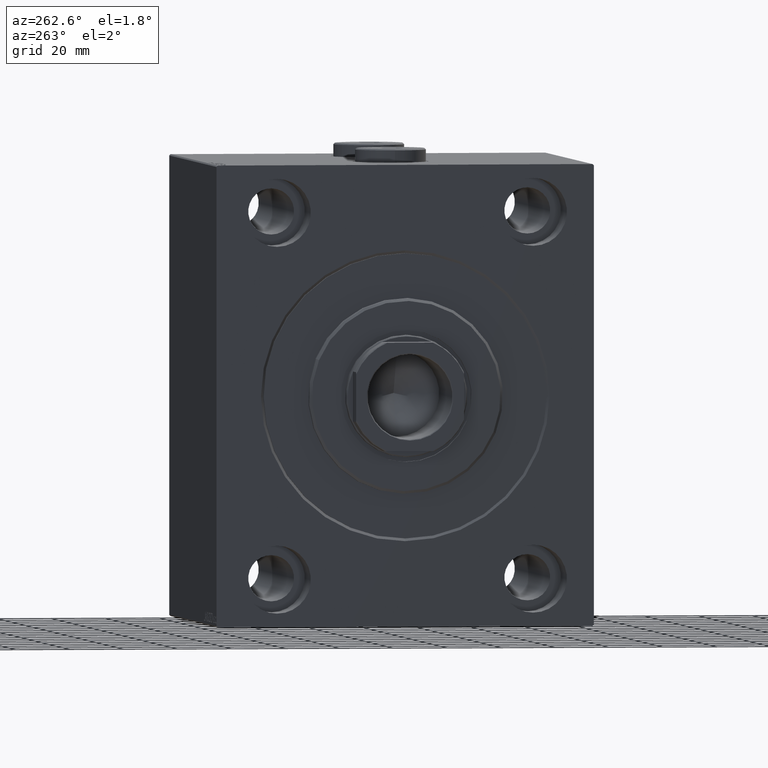
[diagram: clean part render]
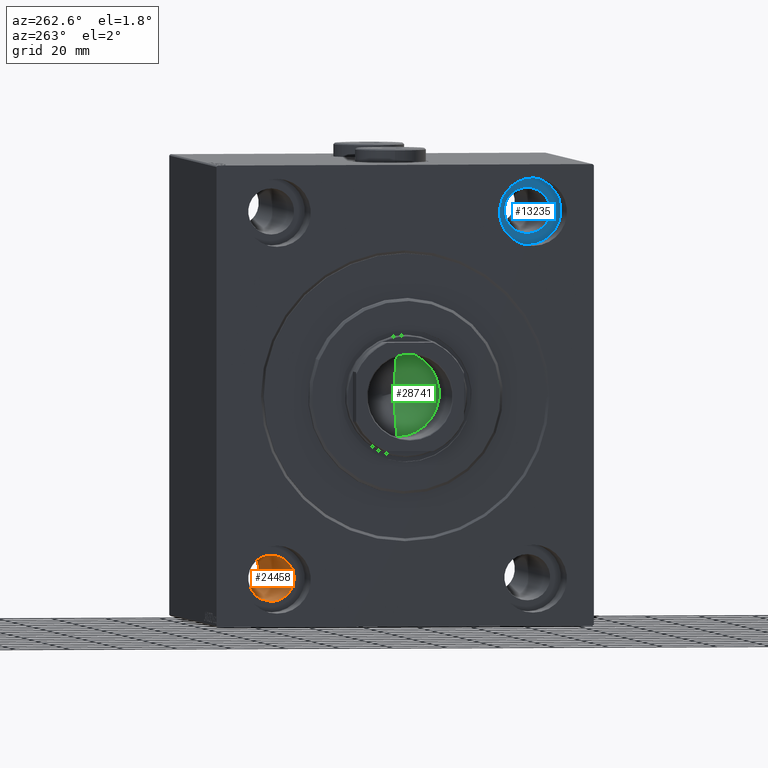
[diagram: same view with three faces highlighted in distinct colors, each labeled with its STEP entity id]
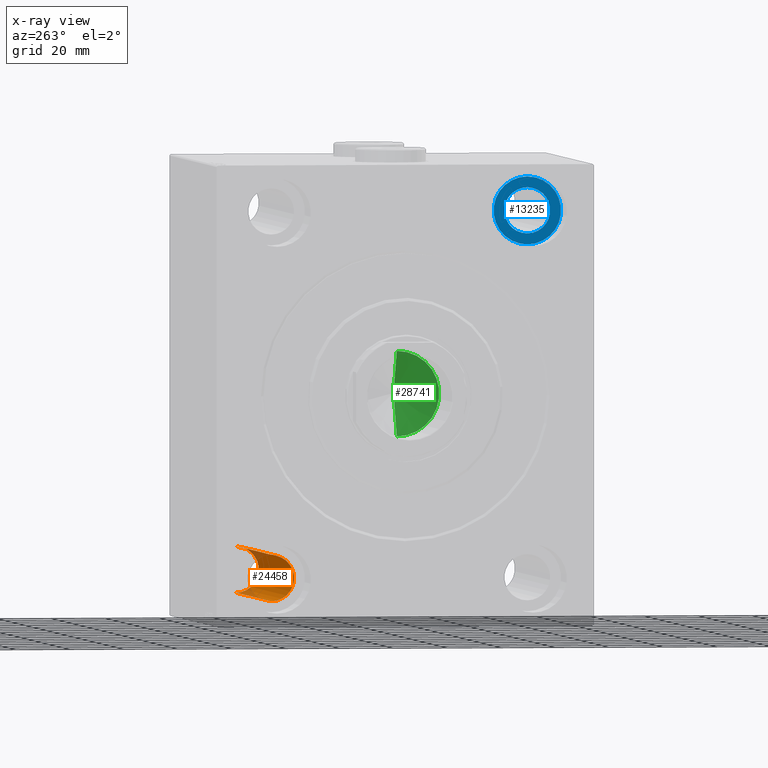
[diagram: x-ray of the same camera — body ghosted, the three highlighted faces saturated]
A machine part, auxiliary view with three faces highlighted in distinct colors.
The next image is the same camera in x-ray (body ghosted, the three faces saturated) — at least one of them is partly hidden behind the body in this view.
Their STEP definitions:

[orange] entity #24458 — the highlighted cylindrical surface (edge-blend (fillet) strip) has radius 8.5 mm, axis along (-1, -0, -0).
#1097 = LINE ( 'NONE', #42843, #41500 ) ;
#1157 = DIRECTION ( 'NONE',  ( 0.000000000000000000, 0.000000000000000000, 1.000000000000000000 ) ) ;
#1319 = VERTEX_POINT ( 'NONE', #3664 ) ;
#3016 = VERTEX_POINT ( 'NONE', #32259 ) ;
#3664 = CARTESIAN_POINT ( 'NONE',  ( 118.0000000000000142, 47.50000000000000711, -59.00000000000001421 ) ) ;
#4801 = FACE_OUTER_BOUND ( 'NONE', #28393, .T. ) ;
#6083 = AXIS2_PLACEMENT_3D ( 'NONE', #26340, #40257, #22910 ) ;
#7026 = DIRECTION ( 'NONE',  ( 0.000000000000000000, 0.000000000000000000, -1.000000000000000000 ) ) ;
#7255 = CARTESIAN_POINT ( 'NONE',  ( 118.0000000000000142, 47.50000000000000711, -67.50000000000000000 ) ) ;
#15516 = CYLINDRICAL_SURFACE ( 'NONE', #28653, 8.499999999999992895 ) ;
#16051 = CARTESIAN_POINT ( 'NONE',  ( 17.00000000000000000, 47.50000000000000711, -76.00000000000000000 ) ) ;
#17029 = VECTOR ( 'NONE', #30551, 1000.000000000000000 ) ;
#19738 = VERTEX_POINT ( 'NONE', #16051 ) ;
#20531 = EDGE_CURVE ( 'NONE', #19738, #25239, #21382, .T. ) ;
#20782 = ORIENTED_EDGE ( 'NONE', *, *, #40687, .F. ) ;
#21382 = CIRCLE ( 'NONE', #6083, 8.499999999999992895 ) ;
#22184 = EDGE_CURVE ( 'NONE', #3016, #19738, #34642, .T. ) ;
#22910 = DIRECTION ( 'NONE',  ( 0.000000000000000000, 0.000000000000000000, 1.000000000000000000 ) ) ;
#24458 = ADVANCED_FACE ( 'NONE', ( #4801 ), #15516, .F. ) ;
#25239 = VERTEX_POINT ( 'NONE', #32196 ) ;
#26340 = CARTESIAN_POINT ( 'NONE',  ( 17.00000000000000000, 47.50000000000000711, -67.50000000000000000 ) ) ;
#28176 = ORIENTED_EDGE ( 'NONE', *, *, #20531, .T. ) ;
#28393 = EDGE_LOOP ( 'NONE', ( #34121, #30130, #28176, #20782 ) ) ;
#28513 = EDGE_CURVE ( 'NONE', #3016, #1319, #38230, .T. ) ;
#28653 = AXIS2_PLACEMENT_3D ( 'NONE', #36516, #39930, #1157 ) ;
#30130 = ORIENTED_EDGE ( 'NONE', *, *, #22184, .T. ) ;
#30551 = DIRECTION ( 'NONE',  ( -1.000000000000000000, -0.000000000000000000, -0.000000000000000000 ) ) ;
#30946 = AXIS2_PLACEMENT_3D ( 'NONE', #7255, #41278, #7026 ) ;
#32196 = CARTESIAN_POINT ( 'NONE',  ( 17.00000000000000000, 47.50000000000000711, -59.00000000000001421 ) ) ;
#32259 = CARTESIAN_POINT ( 'NONE',  ( 118.0000000000000142, 47.50000000000000711, -76.00000000000000000 ) ) ;
#34121 = ORIENTED_EDGE ( 'NONE', *, *, #28513, .F. ) ;
#34642 = LINE ( 'NONE', #41505, #17029 ) ;
#36516 = CARTESIAN_POINT ( 'NONE',  ( 135.0000000000000000, 47.50000000000000711, -67.50000000000000000 ) ) ;
#38230 = CIRCLE ( 'NONE', #30946, 8.499999999999992895 ) ;
#39930 = DIRECTION ( 'NONE',  ( -1.000000000000000000, -0.000000000000000000, -0.000000000000000000 ) ) ;
#40257 = DIRECTION ( 'NONE',  ( -1.000000000000000000, 0.000000000000000000, 0.000000000000000000 ) ) ;
#40687 = EDGE_CURVE ( 'NONE', #1319, #25239, #1097, .T. ) ;
#41278 = DIRECTION ( 'NONE',  ( -1.000000000000000000, -0.000000000000000000, -0.000000000000000000 ) ) ;
#41500 = VECTOR ( 'NONE', #42625, 1000.000000000000000 ) ;
#41505 = CARTESIAN_POINT ( 'NONE',  ( 135.0000000000000000, 47.50000000000000711, -76.00000000000000000 ) ) ;
#42625 = DIRECTION ( 'NONE',  ( -1.000000000000000000, -0.000000000000000000, -0.000000000000000000 ) ) ;
#42843 = CARTESIAN_POINT ( 'NONE',  ( 135.0000000000000000, 47.50000000000000711, -59.00000000000001421 ) ) ;

[blue] entity #13235 — the highlighted planar face has unit normal (-1, 0, 0).
#401 = EDGE_CURVE ( 'NONE', #15230, #6342, #1371, .T. ) ;
#1222 = ORIENTED_EDGE ( 'NONE', *, *, #32999, .T. ) ;
#1371 = CIRCLE ( 'NONE', #11560, 8.500000000000007105 ) ;
#3255 = DIRECTION ( 'NONE',  ( 0.000000000000000000, 0.000000000000000000, 1.000000000000000000 ) ) ;
#3757 = ORIENTED_EDGE ( 'NONE', *, *, #401, .F. ) ;
#5317 = VERTEX_POINT ( 'NONE', #33443 ) ;
#6014 = CIRCLE ( 'NONE', #42435, 12.50000000000001066 ) ;
#6164 = CIRCLE ( 'NONE', #36770, 8.500000000000007105 ) ;
#6206 = EDGE_LOOP ( 'NONE', ( #10385, #1222 ) ) ;
#6342 = VERTEX_POINT ( 'NONE', #25186 ) ;
#6603 = AXIS2_PLACEMENT_3D ( 'NONE', #23169, #37323, #3255 ) ;
#7390 = DIRECTION ( 'NONE',  ( -1.000000000000000000, 0.000000000000000000, 0.000000000000000000 ) ) ;
#8919 = ORIENTED_EDGE ( 'NONE', *, *, #28028, .F. ) ;
#9475 = FACE_BOUND ( 'NONE', #27906, .T. ) ;
#10385 = ORIENTED_EDGE ( 'NONE', *, *, #18638, .T. ) ;
#11560 = AXIS2_PLACEMENT_3D ( 'NONE', #30558, #34647, #20044 ) ;
#11696 = DIRECTION ( 'NONE',  ( 0.000000000000000000, 0.000000000000000000, 1.000000000000000000 ) ) ;
#13235 = ADVANCED_FACE ( 'NONE', ( #9475, #19967 ), #40743, .T. ) ;
#14550 = VERTEX_POINT ( 'NONE', #41516 ) ;
#15099 = DIRECTION ( 'NONE',  ( -1.000000000000000000, 0.000000000000000000, 0.000000000000000000 ) ) ;
#15230 = VERTEX_POINT ( 'NONE', #32585 ) ;
#18638 = EDGE_CURVE ( 'NONE', #5317, #14550, #6014, .T. ) ;
#19967 = FACE_OUTER_BOUND ( 'NONE', #6206, .T. ) ;
#20044 = DIRECTION ( 'NONE',  ( 0.000000000000000000, 0.000000000000000000, 1.000000000000000000 ) ) ;
#23169 = CARTESIAN_POINT ( 'NONE',  ( 17.00000000000000000, 0.000000000000000000, 0.000000000000000000 ) ) ;
#24057 = DIRECTION ( 'NONE',  ( 0.000000000000000000, 0.000000000000000000, 1.000000000000000000 ) ) ;
#25186 = CARTESIAN_POINT ( 'NONE',  ( 17.00000000000000000, -47.49999999999997868, 59.00000000000000000 ) ) ;
#25235 = AXIS2_PLACEMENT_3D ( 'NONE', #34090, #44611, #24057 ) ;
#27906 = EDGE_LOOP ( 'NONE', ( #3757, #8919 ) ) ;
#28028 = EDGE_CURVE ( 'NONE', #6342, #15230, #6164, .T. ) ;
#30558 = CARTESIAN_POINT ( 'NONE',  ( 17.00000000000000000, -47.49999999999997868, 67.50000000000000000 ) ) ;
#32585 = CARTESIAN_POINT ( 'NONE',  ( 17.00000000000000000, -47.49999999999997868, 76.00000000000001421 ) ) ;
#32999 = EDGE_CURVE ( 'NONE', #14550, #5317, #33978, .T. ) ;
#33443 = CARTESIAN_POINT ( 'NONE',  ( 17.00000000000000000, -47.49999999999997868, 80.00000000000001421 ) ) ;
#33978 = CIRCLE ( 'NONE', #25235, 12.50000000000001066 ) ;
#34090 = CARTESIAN_POINT ( 'NONE',  ( 17.00000000000000000, -47.49999999999997868, 67.50000000000000000 ) ) ;
#34647 = DIRECTION ( 'NONE',  ( -1.000000000000000000, 0.000000000000000000, 0.000000000000000000 ) ) ;
#36770 = AXIS2_PLACEMENT_3D ( 'NONE', #43407, #15099, #11696 ) ;
#37323 = DIRECTION ( 'NONE',  ( -1.000000000000000000, 0.000000000000000000, 0.000000000000000000 ) ) ;
#38211 = DIRECTION ( 'NONE',  ( 0.000000000000000000, 0.000000000000000000, 1.000000000000000000 ) ) ;
#38648 = CARTESIAN_POINT ( 'NONE',  ( 17.00000000000000000, -47.49999999999997868, 67.50000000000000000 ) ) ;
#40743 = PLANE ( 'NONE',  #6603 ) ;
#41516 = CARTESIAN_POINT ( 'NONE',  ( 17.00000000000000000, -47.49999999999997868, 55.00000000000000000 ) ) ;
#42435 = AXIS2_PLACEMENT_3D ( 'NONE', #38648, #7390, #38211 ) ;
#43407 = CARTESIAN_POINT ( 'NONE',  ( 17.00000000000000000, -47.49999999999997868, 67.50000000000000000 ) ) ;
#44611 = DIRECTION ( 'NONE',  ( -1.000000000000000000, 0.000000000000000000, 0.000000000000000000 ) ) ;

[green] entity #28741 — the highlighted conical surface has half-angle 59 deg.
#1717 = CIRCLE ( 'NONE', #25789, 15.74999999999999289 ) ;
#1824 = DIRECTION ( 'NONE',  ( 0.8571673007021118895, 0.000000000000000000, 0.5150380749100549327 ) ) ;
#2655 = CARTESIAN_POINT ( 'NONE',  ( 0.000000000000000000, 0.000000000000000000, 26.99999999999998934 ) ) ;
#7563 = EDGE_CURVE ( 'NONE', #11359, #17633, #24246, .T. ) ;
#8419 = CARTESIAN_POINT ( 'NONE',  ( 15.74999999999999289, 0.000000000000000000, 26.99999999999998934 ) ) ;
#8505 = CARTESIAN_POINT ( 'NONE',  ( -15.74999999999999289, 1.928818708657080556E-15, 26.99999999999998934 ) ) ;
#11338 = EDGE_LOOP ( 'NONE', ( #25740, #26877, #44318 ) ) ;
#11359 = VERTEX_POINT ( 'NONE', #40545 ) ;
#12250 = DIRECTION ( 'NONE',  ( -0.000000000000000000, -0.000000000000000000, 1.000000000000000000 ) ) ;
#13801 = VECTOR ( 'NONE', #1824, 1000.000000000000000 ) ;
#15510 = LINE ( 'NONE', #33074, #13801 ) ;
#15871 = DIRECTION ( 'NONE',  ( -0.000000000000000000, -0.000000000000000000, 1.000000000000000000 ) ) ;
#17633 = VERTEX_POINT ( 'NONE', #8505 ) ;
#20800 = DIRECTION ( 'NONE',  ( -0.8571673007021118895, 1.049727191138618079E-16, 0.5150380749100549327 ) ) ;
#24246 = LINE ( 'NONE', #38161, #27625 ) ;
#25740 = ORIENTED_EDGE ( 'NONE', *, *, #41367, .F. ) ;
#25789 = AXIS2_PLACEMENT_3D ( 'NONE', #30246, #15871, #29792 ) ;
#26057 = EDGE_CURVE ( 'NONE', #17633, #30596, #1717, .T. ) ;
#26181 = DIRECTION ( 'NONE',  ( 1.000000000000000000, 0.000000000000000000, 0.000000000000000000 ) ) ;
#26877 = ORIENTED_EDGE ( 'NONE', *, *, #7563, .T. ) ;
#27625 = VECTOR ( 'NONE', #20800, 1000.000000000000000 ) ;
#28033 = CONICAL_SURFACE ( 'NONE', #41132, 15.74999999999999289, 1.029744258676653645 ) ;
#28741 = ADVANCED_FACE ( 'NONE', ( #33689 ), #28033, .F. ) ;
#29792 = DIRECTION ( 'NONE',  ( 1.000000000000000000, 0.000000000000000000, 0.000000000000000000 ) ) ;
#30246 = CARTESIAN_POINT ( 'NONE',  ( 0.000000000000000000, 0.000000000000000000, 26.99999999999998934 ) ) ;
#30596 = VERTEX_POINT ( 'NONE', #8419 ) ;
#33074 = CARTESIAN_POINT ( 'NONE',  ( 15.74999999999999289, 0.000000000000000000, 26.99999999999998934 ) ) ;
#33689 = FACE_OUTER_BOUND ( 'NONE', #11338, .T. ) ;
#38161 = CARTESIAN_POINT ( 'NONE',  ( -15.74999999999999289, 1.928818708657080556E-15, 26.99999999999998934 ) ) ;
#40545 = CARTESIAN_POINT ( 'NONE',  ( -1.199718644317817648E-14, 0.000000000000000000, 17.53644525031590362 ) ) ;
#41132 = AXIS2_PLACEMENT_3D ( 'NONE', #2655, #12250, #26181 ) ;
#41367 = EDGE_CURVE ( 'NONE', #11359, #30596, #15510, .T. ) ;
#44318 = ORIENTED_EDGE ( 'NONE', *, *, #26057, .T. ) ;